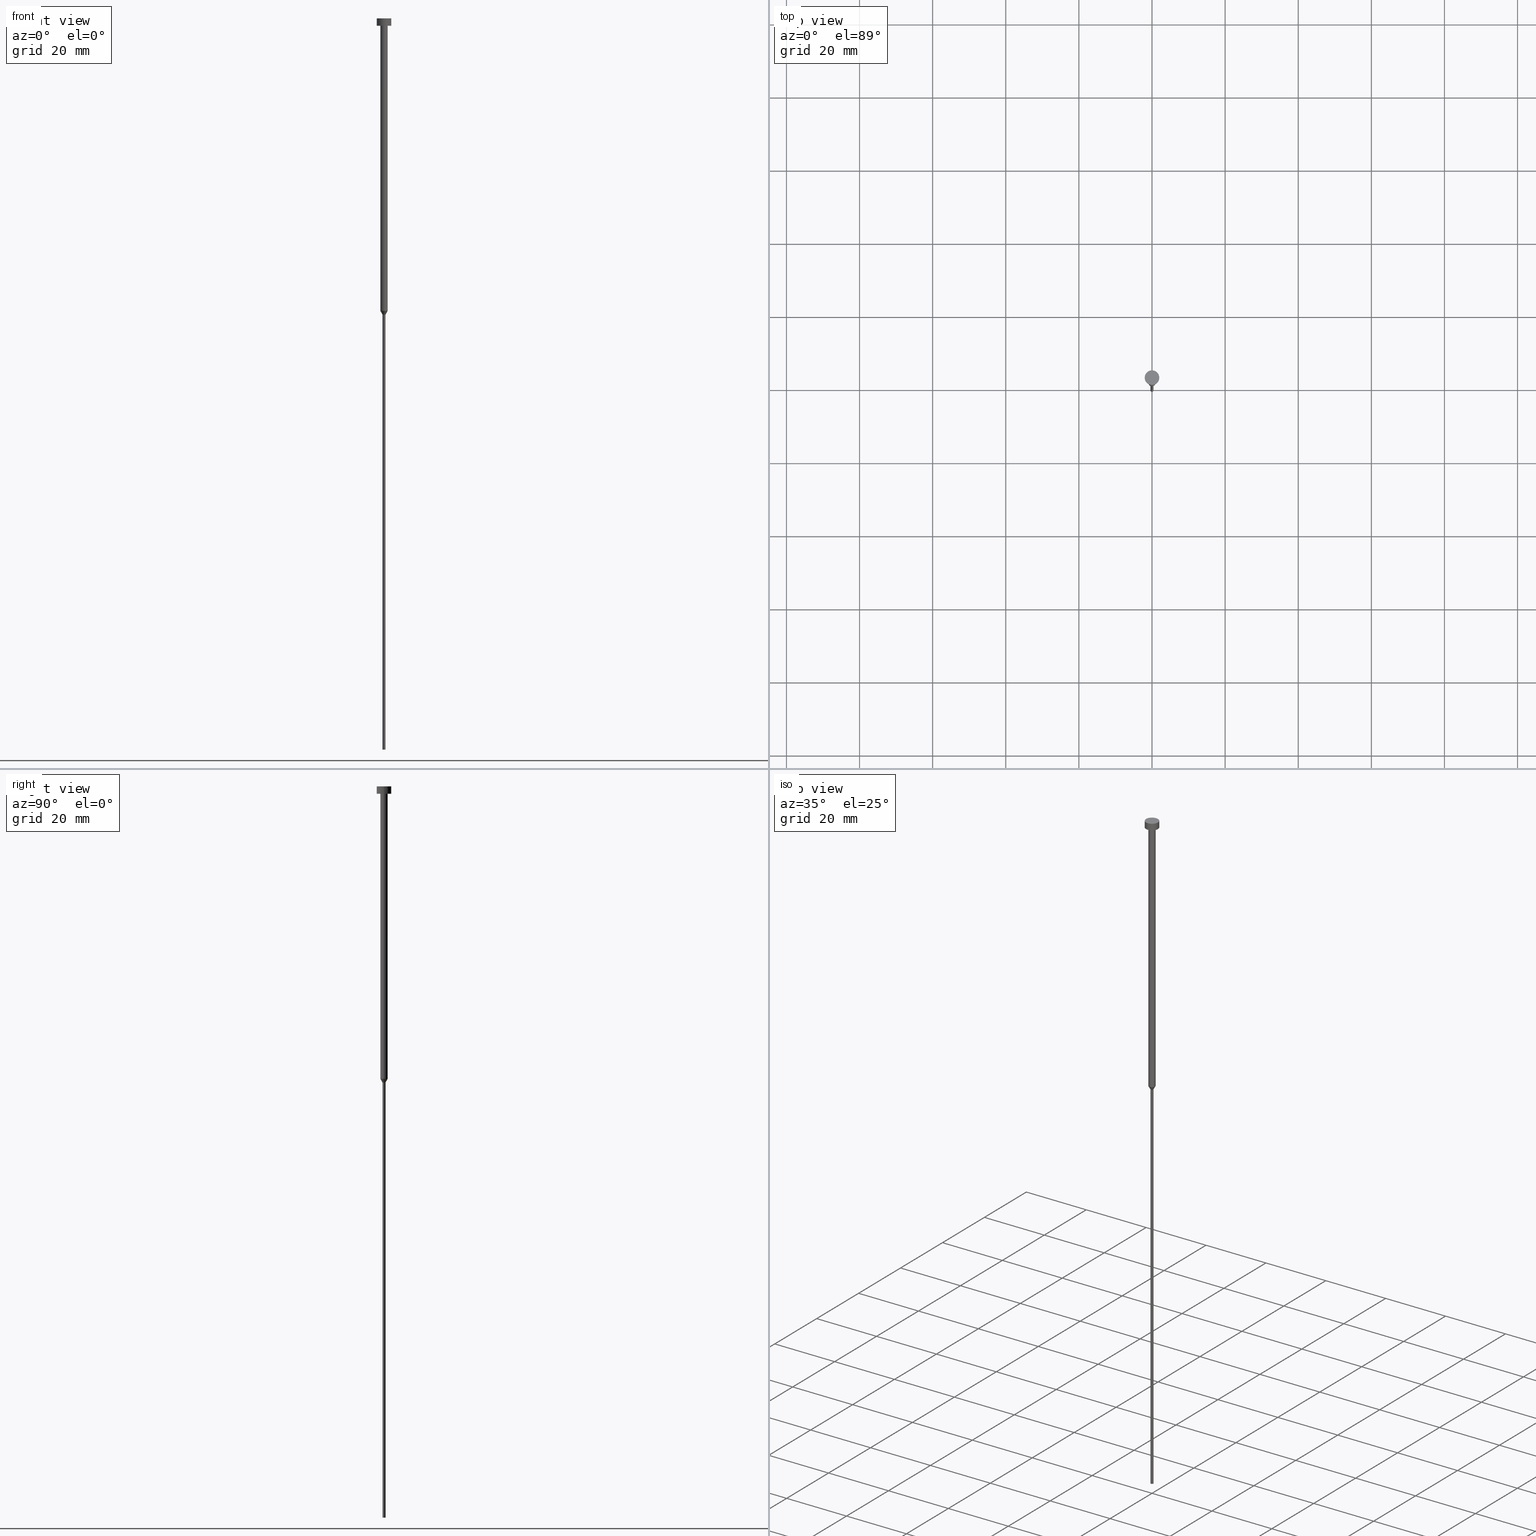
[diagram: canonical four-view strip — front | top / right | iso, engineering-drawing reading convention]
A machine part, canonical four-view strip (front | top / right | iso — engineering-drawing reading convention). The complete STEP part file that produces these views, byte-faithful:
ISO-10303-21;
HEADER;
FILE_DESCRIPTION (( 'STEP AP203' ),
    '1' );
FILE_NAME ('783f.STEP',
    '2023-02-13T11:50:25',
    ( '' ),
    ( '' ),
    'SwSTEP 2.0',
    'SolidWorks 2019',
    '' );
FILE_SCHEMA (( 'CONFIG_CONTROL_DESIGN' ));
ENDSEC;

DATA;
#1 = EDGE_LOOP ( 'NONE', ( #29, #124, #99, #126 ) ) ;
#2 = CARTESIAN_POINT ( 'NONE',  ( 0.000000000000000000, 0.000000000000000000, -2.000000000000000444 ) ) ;
#3 = DIRECTION ( 'NONE',  ( -0.000000000000000000, -0.000000000000000000, 1.000000000000000000 ) ) ;
#4 = CARTESIAN_POINT ( 'NONE',  ( 0.000000000000000000, 0.000000000000000000, 0.000000000000000000 ) ) ;
#5 = DIRECTION ( 'NONE',  ( 1.000000000000000000, 0.000000000000000000, 0.000000000000000000 ) ) ;
#6 = CARTESIAN_POINT ( 'NONE',  ( 0.000000000000000000, 0.000000000000000000, -1.224646799147352961E-16 ) ) ;
#7 = VECTOR ( 'NONE', #295, 1000.000000000000000 ) ;
#8 = DIRECTION ( 'NONE',  ( -0.000000000000000000, -0.000000000000000000, 1.000000000000000000 ) ) ;
#9 = UNCERTAINTY_MEASURE_WITH_UNIT (LENGTH_MEASURE( 1.000000000000000082E-05 ), #214, 'distance_accuracy_value', 'NONE');
#10 = CYLINDRICAL_SURFACE ( 'NONE', #280, 2.000000000000000000 ) ;
#11 = VERTEX_POINT ( 'NONE', #278 ) ;
#12 = FACE_OUTER_BOUND ( 'NONE', #58, .T. ) ;
#13 = AXIS2_PLACEMENT_3D ( 'NONE', #136, #285, #19 ) ;
#14 = DIRECTION ( 'NONE',  ( 1.000000000000000000, 0.000000000000000000, 0.000000000000000000 ) ) ;
#15 = PERSON_AND_ORGANIZATION_ROLE ( 'creator' ) ;
#16 = AXIS2_PLACEMENT_3D ( 'NONE', #303, #227, #335 ) ;
#17 = CIRCLE ( 'NONE', #270, 0.3999999999999999667 ) ;
#18 = CALENDAR_DATE ( 2023, 13, 2 ) ;
#19 = DIRECTION ( 'NONE',  ( 1.000000000000000000, 0.000000000000000000, 0.000000000000000000 ) ) ;
#20 = EDGE_CURVE ( 'NONE', #11, #188, #80, .T. ) ;
#21 = CARTESIAN_POINT ( 'NONE',  ( 1.000000000000003553, 0.000000000000000000, -2.000000000000000444 ) ) ;
#22 = DIRECTION ( 'NONE',  ( 1.000000000000000000, 0.000000000000000000, 0.000000000000000000 ) ) ;
#23 = CARTESIAN_POINT ( 'NONE',  ( -1.000000000000003331, 1.224646799147357151E-16, 0.000000000000000000 ) ) ;
#24 = EDGE_CURVE ( 'NONE', #87, #61, #169, .T. ) ;
#25 = CARTESIAN_POINT ( 'NONE',  ( 0.000000000000000000, 0.000000000000000000, -2.000000000000000444 ) ) ;
#26 = CLOSED_SHELL ( 'NONE', ( #274, #281, #34, #163, #88, #83, #292, #347, #78, #118, #41 ) ) ;
#27 = EDGE_LOOP ( 'NONE', ( #68, #133, #198, #276 ) ) ;
#28 = APPROVAL_PERSON_ORGANIZATION ( #352, #247, #115 ) ;
#29 = ORIENTED_EDGE ( 'NONE', *, *, #170, .F. ) ;
#30 = FACE_BOUND ( 'NONE', #266, .T. ) ;
#31 = DIRECTION ( 'NONE',  ( -0.000000000000000000, -0.000000000000000000, 1.000000000000000000 ) ) ;
#32 = DIRECTION ( 'NONE',  ( -1.000000000000000000, 0.000000000000000000, -0.000000000000000000 ) ) ;
#33 = ORIENTED_EDGE ( 'NONE', *, *, #298, .F. ) ;
#34 = ADVANCED_FACE ( 'NONE', ( #256 ), #55, .T. ) ;
#35 = CONICAL_SURFACE ( 'NONE', #139, 1.000000000000003109, 0.5235987755983013692 ) ;
#36 = ORIENTED_EDGE ( 'NONE', *, *, #107, .T. ) ;
#37 = CYLINDRICAL_SURFACE ( 'NONE', #275, 0.3999999999999999667 ) ;
#38 = CARTESIAN_POINT ( 'NONE',  ( 0.000000000000000000, 0.000000000000000000, -80.00000000000000000 ) ) ;
#39 = MANIFOLD_SOLID_BREP ( 'Rotovat1', #26 ) ;
#40 = EDGE_LOOP ( 'NONE', ( #333, #290, #113, #305 ) ) ;
#41 = ADVANCED_FACE ( 'NONE', ( #100 ), #253, .T. ) ;
#42 = CIRCLE ( 'NONE', #120, 1.000000000000003553 ) ;
#43 = PRODUCT ( '783f', '783f', '', ( #314 ) ) ;
#44 = CARTESIAN_POINT ( 'NONE',  ( -1.000000000000003109, 1.224646799147356905E-16, -80.00000000000000000 ) ) ;
#45 = CARTESIAN_POINT ( 'NONE',  ( -1.000000000000003109, 1.224646799147356905E-16, -80.00000000000000000 ) ) ;
#46 = DIRECTION ( 'NONE',  ( 1.000000000000000000, 0.000000000000000000, 0.000000000000000000 ) ) ;
#47 = APPLICATION_CONTEXT ( 'configuration controlled 3d designs of mechanical parts and assemblies' ) ;
#48 = CC_DESIGN_PERSON_AND_ORGANIZATION_ASSIGNMENT ( #132, #53, ( #149 ) ) ;
#49 = COORDINATED_UNIVERSAL_TIME_OFFSET ( 1, 0, .AHEAD. ) ;
#50 = CIRCLE ( 'NONE', #315, 2.000000000000000000 ) ;
#51 = DATE_AND_TIME ( #259, #351 ) ;
#52 = EDGE_CURVE ( 'NONE', #242, #307, #288, .T. ) ;
#53 = PERSON_AND_ORGANIZATION_ROLE ( 'design_supplier' ) ;
#54 = COORDINATED_UNIVERSAL_TIME_OFFSET ( 1, 0, .AHEAD. ) ;
#55 = CONICAL_SURFACE ( 'NONE', #16, 1.000000000000003109, 0.5235987755983013692 ) ;
#56 = ORGANIZATION ( 'NEUR�EN�', 'NEUR�EN�', '' ) ;
#57 = DIRECTION ( 'NONE',  ( -0.000000000000000000, -0.000000000000000000, 1.000000000000000000 ) ) ;
#58 = EDGE_LOOP ( 'NONE', ( #212, #210 ) ) ;
#59 = EDGE_LOOP ( 'NONE', ( #85, #181, #237, #297 ) ) ;
#60 = DIRECTION ( 'NONE',  ( 1.000000000000000000, 0.000000000000000000, 0.000000000000000000 ) ) ;
#61 = VERTEX_POINT ( 'NONE', #66 ) ;
#62 = APPROVAL_DATE_TIME ( #249, #247 ) ;
#63 = AXIS2_PLACEMENT_3D ( 'NONE', #125, #339, #98 ) ;
#64 = VECTOR ( 'NONE', #57, 1000.000000000000000 ) ;
#65 = EDGE_CURVE ( 'NONE', #262, #110, #102, .T. ) ;
#66 = CARTESIAN_POINT ( 'NONE',  ( 1.000000000000003109, 0.000000000000000000, -80.00000000000000000 ) ) ;
#67 = PRODUCT_RELATED_PRODUCT_CATEGORY ( 'detail', '', ( #43 ) ) ;
#68 = ORIENTED_EDGE ( 'NONE', *, *, #298, .T. ) ;
#69 = AXIS2_PLACEMENT_3D ( 'NONE', #341, #332, #94 ) ;
#70 = DIRECTION ( 'NONE',  ( -0.000000000000000000, -0.000000000000000000, 1.000000000000000000 ) ) ;
#71 = DIRECTION ( 'NONE',  ( -0.000000000000000000, -0.000000000000000000, 1.000000000000000000 ) ) ;
#72 = APPROVAL ( #202, 'NEUR�EN�' ) ;
#73 = VERTEX_POINT ( 'NONE', #272 ) ;
#74 = ORIENTED_EDGE ( 'NONE', *, *, #95, .T. ) ;
#75 = DIRECTION ( 'NONE',  ( 1.000000000000000000, 0.000000000000000000, 0.000000000000000000 ) ) ;
#76 = AXIS2_PLACEMENT_3D ( 'NONE', #269, #141, #221 ) ;
#77 = PRODUCT_DEFINITION_SHAPE ( 'NONE', 'NONE',  #309 ) ;
#78 = ADVANCED_FACE ( 'NONE', ( #30, #142 ), #219, .T. ) ;
#79 = COORDINATED_UNIVERSAL_TIME_OFFSET ( 1, 0, .AHEAD. ) ;
#80 = CIRCLE ( 'NONE', #268, 0.3999999999999999667 ) ;
#81 = AXIS2_PLACEMENT_3D ( 'NONE', #106, #109, #135 ) ;
#82 = CARTESIAN_POINT ( 'NONE',  ( 0.000000000000000000, 0.000000000000000000, -2.000000000000000444 ) ) ;
#83 = ADVANCED_FACE ( 'NONE', ( #92 ), #37, .T. ) ;
#84 = PERSON_AND_ORGANIZATION ( #257, #56 ) ;
#85 = ORIENTED_EDGE ( 'NONE', *, *, #162, .T. ) ;
#86 = AXIS2_PLACEMENT_3D ( 'NONE', #330, #165, #32 ) ;
#87 = VERTEX_POINT ( 'NONE', #44 ) ;
#88 = ADVANCED_FACE ( 'NONE', ( #12 ), #252, .T. ) ;
#89 = CARTESIAN_POINT ( 'NONE',  ( 0.000000000000000000, 0.000000000000000000, -2.449293598294705921E-16 ) ) ;
#90 = AXIS2_PLACEMENT_3D ( 'NONE', #244, #328, #60 ) ;
#91 = EDGE_CURVE ( 'NONE', #61, #262, #196, .T. ) ;
#92 = FACE_OUTER_BOUND ( 'NONE', #1, .T. ) ;
#93 = VERTEX_POINT ( 'NONE', #231 ) ;
#94 = DIRECTION ( 'NONE',  ( 1.000000000000000000, 0.000000000000000000, 0.000000000000000000 ) ) ;
#95 = EDGE_CURVE ( 'NONE', #307, #93, #194, .T. ) ;
#96 = EDGE_CURVE ( 'NONE', #61, #87, #346, .T. ) ;
#97 = DIRECTION ( 'NONE',  ( 1.000000000000000000, 0.000000000000000000, 0.000000000000000000 ) ) ;
#98 = DIRECTION ( 'NONE',  ( -1.000000000000000000, 0.000000000000000000, -0.000000000000000000 ) ) ;
#99 = ORIENTED_EDGE ( 'NONE', *, *, #101, .T. ) ;
#100 = FACE_OUTER_BOUND ( 'NONE', #174, .T. ) ;
#101 = EDGE_CURVE ( 'NONE', #168, #188, #353, .T. ) ;
#102 = CIRCLE ( 'NONE', #152, 1.000000000000003553 ) ;
#103 = CC_DESIGN_SECURITY_CLASSIFICATION ( #177, ( #149 ) ) ;
#104 = CARTESIAN_POINT ( 'NONE',  ( 2.000000000000000000, 0.000000000000000000, -2.000000000000000444 ) ) ;
#105 = DATE_TIME_ROLE ( 'creation_date' ) ;
#106 = CARTESIAN_POINT ( 'NONE',  ( 0.000000000000000000, 0.000000000000000000, 0.000000000000000000 ) ) ;
#107 = EDGE_CURVE ( 'NONE', #188, #61, #267, .T. ) ;
#108 = CC_DESIGN_APPROVAL ( #342, ( #309 ) ) ;
#109 = DIRECTION ( 'NONE',  ( -0.000000000000000000, -0.000000000000000000, 1.000000000000000000 ) ) ;
#110 = VERTEX_POINT ( 'NONE', #258 ) ;
#111 = EDGE_CURVE ( 'NONE', #73, #242, #127, .T. ) ;
#112 = APPROVAL_DATE_TIME ( #286, #342 ) ;
#113 = ORIENTED_EDGE ( 'NONE', *, *, #52, .T. ) ;
#114 = ORIENTED_EDGE ( 'NONE', *, *, #24, .T. ) ;
#115 = APPROVAL_ROLE ( '' ) ;
#116 = CARTESIAN_POINT ( 'NONE',  ( 0.3999999999999999667, 0.000000000000000000, 0.000000000000000000 ) ) ;
#117 = CC_DESIGN_DATE_AND_TIME_ASSIGNMENT ( #156, #187, ( #177 ) ) ;
#118 = ADVANCED_FACE ( 'NONE', ( #185 ), #293, .T. ) ;
#119 = VECTOR ( 'NONE', #70, 1000.000000000000000 ) ;
#120 = AXIS2_PLACEMENT_3D ( 'NONE', #25, #317, #97 ) ;
#121 = EDGE_CURVE ( 'NONE', #87, #110, #207, .T. ) ;
#122 = VECTOR ( 'NONE', #153, 1000.000000000000227 ) ;
#123 = FACE_OUTER_BOUND ( 'NONE', #350, .T. ) ;
#124 = ORIENTED_EDGE ( 'NONE', *, *, #250, .T. ) ;
#125 = CARTESIAN_POINT ( 'NONE',  ( 0.000000000000000000, 0.000000000000000000, -200.0000000000000000 ) ) ;
#126 = ORIENTED_EDGE ( 'NONE', *, *, #20, .F. ) ;
#127 = CIRCLE ( 'NONE', #161, 2.000000000000000000 ) ;
#128 = FACE_OUTER_BOUND ( 'NONE', #27, .T. ) ;
#129 = PERSON_AND_ORGANIZATION_ROLE ( 'creator' ) ;
#130 = APPROVAL_STATUS ( 'not_yet_approved' ) ;
#131 = CIRCLE ( 'NONE', #164, 0.4000000000000000222 ) ;
#132 = PERSON_AND_ORGANIZATION ( #257, #56 ) ;
#133 = ORIENTED_EDGE ( 'NONE', *, *, #355, .T. ) ;
#134 = CARTESIAN_POINT ( 'NONE',  ( 0.4000000000000000222, 0.000000000000000000, -200.0000000000000000 ) ) ;
#135 = DIRECTION ( 'NONE',  ( 1.000000000000000000, 0.000000000000000000, 0.000000000000000000 ) ) ;
#136 = CARTESIAN_POINT ( 'NONE',  ( 0.000000000000000000, 0.000000000000000000, 0.000000000000000000 ) ) ;
#137 = EDGE_LOOP ( 'NONE', ( #217, #166, #300, #320 ) ) ;
#138 = ORIENTED_EDGE ( 'NONE', *, *, #230, .F. ) ;
#139 = AXIS2_PLACEMENT_3D ( 'NONE', #304, #284, #345 ) ;
#140 = ORIENTED_EDGE ( 'NONE', *, *, #91, .T. ) ;
#141 = DIRECTION ( 'NONE',  ( -0.000000000000000000, -0.000000000000000000, 1.000000000000000000 ) ) ;
#142 = FACE_OUTER_BOUND ( 'NONE', #200, .T. ) ;
#143 = DIRECTION ( 'NONE',  ( 1.000000000000000000, 0.000000000000000000, 0.000000000000000000 ) ) ;
#144 = FACE_OUTER_BOUND ( 'NONE', #59, .T. ) ;
#145 = CALENDAR_DATE ( 2023, 13, 2 ) ;
#146 = VECTOR ( 'NONE', #343, 1000.000000000000000 ) ;
#147 = DIRECTION ( 'NONE',  ( -0.000000000000000000, -0.000000000000000000, 1.000000000000000000 ) ) ;
#148 = DIRECTION ( 'NONE',  ( -0.000000000000000000, -0.000000000000000000, 1.000000000000000000 ) ) ;
#149 = PRODUCT_DEFINITION_FORMATION_WITH_SPECIFIED_SOURCE ( 'LIBOVOLN�', '', #43, .NOT_KNOWN. ) ;
#150 = DIRECTION ( 'NONE',  ( -0.5000000000000021094, 6.123233995736791920E-17, 0.8660254037844373753 ) ) ;
#151 = DIRECTION ( 'NONE',  ( -0.000000000000000000, -0.000000000000000000, 1.000000000000000000 ) ) ;
#152 = AXIS2_PLACEMENT_3D ( 'NONE', #2, #193, #273 ) ;
#153 = DIRECTION ( 'NONE',  ( 0.5000000000000021094, 0.000000000000000000, 0.8660254037844373753 ) ) ;
#154 = PERSON_AND_ORGANIZATION ( #257, #56 ) ;
#155 = DIRECTION ( 'NONE',  ( 1.000000000000000000, 0.000000000000000000, 0.000000000000000000 ) ) ;
#156 = DATE_AND_TIME ( #344, #264 ) ;
#157 = PERSON_AND_ORGANIZATION ( #257, #56 ) ;
#158 = CC_DESIGN_PERSON_AND_ORGANIZATION_ASSIGNMENT ( #260, #235, ( #177 ) ) ;
#159 = AXIS2_PLACEMENT_3D ( 'NONE', #337, #71, #226 ) ;
#160 = DIRECTION ( 'NONE',  ( -0.000000000000000000, -0.000000000000000000, 1.000000000000000000 ) ) ;
#161 = AXIS2_PLACEMENT_3D ( 'NONE', #204, #277, #294 ) ;
#162 = EDGE_CURVE ( 'NONE', #168, #224, #206, .T. ) ;
#163 = ADVANCED_FACE ( 'NONE', ( #144 ), #245, .T. ) ;
#164 = AXIS2_PLACEMENT_3D ( 'NONE', #310, #151, #313 ) ;
#165 = DIRECTION ( 'NONE',  ( 0.000000000000000000, 0.000000000000000000, -1.000000000000000000 ) ) ;
#166 = ORIENTED_EDGE ( 'NONE', *, *, #230, .T. ) ;
#167 = CARTESIAN_POINT ( 'NONE',  ( 1.000000000000003331, 0.000000000000000000, 0.000000000000000000 ) ) ;
#168 = VERTEX_POINT ( 'NONE', #134 ) ;
#169 = CIRCLE ( 'NONE', #279, 1.000000000000003109 ) ;
#170 = EDGE_CURVE ( 'NONE', #224, #11, #239, .T. ) ;
#171 = AXIS2_PLACEMENT_3D ( 'NONE', #205, #234, #14 ) ;
#172 = CARTESIAN_POINT ( 'NONE',  ( -0.4000000000000000777, 4.898587196589413692E-17, -200.0000000000000000 ) ) ;
#173 = CYLINDRICAL_SURFACE ( 'NONE', #69, 1.000000000000003331 ) ;
#174 = EDGE_LOOP ( 'NONE', ( #74, #321 ) ) ;
#175 =( NAMED_UNIT ( * ) SI_UNIT ( $, .STERADIAN. ) SOLID_ANGLE_UNIT ( ) );
#176 = APPROVAL_DATE_TIME ( #348, #72 ) ;
#177 = SECURITY_CLASSIFICATION ( '', '', #238 ) ;
#178 = COORDINATED_UNIVERSAL_TIME_OFFSET ( 1, 0, .AHEAD. ) ;
#179 = CARTESIAN_POINT ( 'NONE',  ( 2.000000000000000000, 0.000000000000000000, 0.000000000000000000 ) ) ;
#180 = CALENDAR_DATE ( 2023, 13, 2 ) ;
#181 = ORIENTED_EDGE ( 'NONE', *, *, #170, .T. ) ;
#182 = PERSON_AND_ORGANIZATION ( #257, #56 ) ;
#183 = CC_DESIGN_PERSON_AND_ORGANIZATION_ASSIGNMENT ( #84, #15, ( #309 ) ) ;
#184 = ORIENTED_EDGE ( 'NONE', *, *, #265, .T. ) ;
#185 = FACE_OUTER_BOUND ( 'NONE', #40, .T. ) ;
#186 = ORIENTED_EDGE ( 'NONE', *, *, #111, .F. ) ;
#187 = DATE_TIME_ROLE ( 'classification_date' ) ;
#188 = VERTEX_POINT ( 'NONE', #208 ) ;
#189 = APPROVAL_STATUS ( 'not_yet_approved' ) ;
#190 = CARTESIAN_POINT ( 'NONE',  ( 2.000000000000000000, 0.000000000000000000, -2.449293598294705921E-16 ) ) ;
#191 = DIRECTION ( 'NONE',  ( 1.000000000000000000, 0.000000000000000000, 0.000000000000000000 ) ) ;
#192 = ORIENTED_EDGE ( 'NONE', *, *, #24, .F. ) ;
#193 = DIRECTION ( 'NONE',  ( -0.000000000000000000, -0.000000000000000000, 1.000000000000000000 ) ) ;
#194 = CIRCLE ( 'NONE', #159, 2.000000000000000000 ) ;
#195 = ORIENTED_EDGE ( 'NONE', *, *, #121, .F. ) ;
#196 = LINE ( 'NONE', #167, #216 ) ;
#197 = CC_DESIGN_PERSON_AND_ORGANIZATION_ASSIGNMENT ( #154, #129, ( #149 ) ) ;
#198 = ORIENTED_EDGE ( 'NONE', *, *, #95, .F. ) ;
#199 = DIRECTION ( 'NONE',  ( 0.000000000000000000, -0.000000000000000000, 1.000000000000000000 ) ) ;
#200 = EDGE_LOOP ( 'NONE', ( #33, #186 ) ) ;
#201 = CC_DESIGN_APPROVAL ( #247, ( #177 ) ) ;
#202 = APPROVAL_STATUS ( 'not_yet_approved' ) ;
#203 = LINE ( 'NONE', #45, #340 ) ;
#204 = CARTESIAN_POINT ( 'NONE',  ( 0.000000000000000000, 0.000000000000000000, -2.000000000000000444 ) ) ;
#205 = CARTESIAN_POINT ( 'NONE',  ( 0.000000000000000000, 0.000000000000000000, 0.000000000000000000 ) ) ;
#206 = CIRCLE ( 'NONE', #76, 0.4000000000000000222 ) ;
#207 = LINE ( 'NONE', #23, #146 ) ;
#208 = CARTESIAN_POINT ( 'NONE',  ( 0.3999999999999999667, 0.000000000000000000, -81.03923048454132072 ) ) ;
#209 =( NAMED_UNIT ( * ) PLANE_ANGLE_UNIT ( ) SI_UNIT ( $, .RADIAN. ) );
#210 = ORIENTED_EDGE ( 'NONE', *, *, #250, .F. ) ;
#211 = APPLICATION_PROTOCOL_DEFINITION ( 'international standard', 'config_control_design', 1994, #47 ) ;
#212 = ORIENTED_EDGE ( 'NONE', *, *, #162, .F. ) ;
#213 = CARTESIAN_POINT ( 'NONE',  ( -0.3999999999999999667, 4.898587196589412459E-17, 0.000000000000000000 ) ) ;
#214 =( LENGTH_UNIT ( ) NAMED_UNIT ( * ) SI_UNIT ( .MILLI., .METRE. ) );
#215 = ORIENTED_EDGE ( 'NONE', *, *, #65, .F. ) ;
#216 = VECTOR ( 'NONE', #8, 1000.000000000000000 ) ;
#217 = ORIENTED_EDGE ( 'NONE', *, *, #329, .T. ) ;
#218 = APPLICATION_CONTEXT ( 'configuration controlled 3d designs of mechanical parts and assemblies' ) ;
#219 = PLANE ( 'NONE',  #86 ) ;
#220 = CARTESIAN_POINT ( 'NONE',  ( 1.000000000000003109, 0.000000000000000000, -80.00000000000000000 ) ) ;
#221 = DIRECTION ( 'NONE',  ( 1.000000000000000000, 0.000000000000000000, 0.000000000000000000 ) ) ;
#222 = DIRECTION ( 'NONE',  ( -0.000000000000000000, -0.000000000000000000, 1.000000000000000000 ) ) ;
#223 = EDGE_LOOP ( 'NONE', ( #138, #240, #36, #192 ) ) ;
#224 = VERTEX_POINT ( 'NONE', #172 ) ;
#225 = ORIENTED_EDGE ( 'NONE', *, *, #96, .T. ) ;
#226 = DIRECTION ( 'NONE',  ( 1.000000000000000000, 0.000000000000000000, 0.000000000000000000 ) ) ;
#227 = DIRECTION ( 'NONE',  ( -0.000000000000000000, -0.000000000000000000, 1.000000000000000000 ) ) ;
#228 = LOCAL_TIME ( 12, 50, 25.00000000000000000, #296 ) ;
#229 = CC_DESIGN_PERSON_AND_ORGANIZATION_ASSIGNMENT ( #289, #349, ( #43 ) ) ;
#230 = EDGE_CURVE ( 'NONE', #11, #87, #203, .T. ) ;
#231 = CARTESIAN_POINT ( 'NONE',  ( -2.000000000000000000, 2.449293598294706414E-16, -2.449293598294705921E-16 ) ) ;
#232 = DESIGN_CONTEXT ( 'detailed design', #47, 'design' ) ;
#233 = APPROVAL_PERSON_ORGANIZATION ( #157, #342, #236 ) ;
#234 = DIRECTION ( 'NONE',  ( 0.000000000000000000, 0.000000000000000000, 1.000000000000000000 ) ) ;
#235 = PERSON_AND_ORGANIZATION_ROLE ( 'classification_officer' ) ;
#236 = APPROVAL_ROLE ( '' ) ;
#237 = ORIENTED_EDGE ( 'NONE', *, *, #329, .F. ) ;
#238 = SECURITY_CLASSIFICATION_LEVEL ( 'unclassified' ) ;
#239 = LINE ( 'NONE', #213, #255 ) ;
#240 = ORIENTED_EDGE ( 'NONE', *, *, #20, .T. ) ;
#241 = LINE ( 'NONE', #316, #64 ) ;
#242 = VERTEX_POINT ( 'NONE', #104 ) ;
#243 = APPROVAL_PERSON_ORGANIZATION ( #182, #72, #312 ) ;
#244 = CARTESIAN_POINT ( 'NONE',  ( 0.000000000000000000, 0.000000000000000000, 0.000000000000000000 ) ) ;
#245 = CYLINDRICAL_SURFACE ( 'NONE', #13, 0.3999999999999999667 ) ;
#246 = ADVANCED_BREP_SHAPE_REPRESENTATION ( '783f', ( #39, #171 ), #302 ) ;
#247 = APPROVAL ( #189, 'NEUR�EN�' ) ;
#248 = CC_DESIGN_APPROVAL ( #72, ( #149 ) ) ;
#249 = DATE_AND_TIME ( #145, #228 ) ;
#250 = EDGE_CURVE ( 'NONE', #224, #168, #131, .T. ) ;
#251 = CARTESIAN_POINT ( 'NONE',  ( 0.000000000000000000, 0.000000000000000000, -80.00000000000000000 ) ) ;
#252 = PLANE ( 'NONE',  #63 ) ;
#253 = PLANE ( 'NONE',  #331 ) ;
#254 = LOCAL_TIME ( 12, 50, 25.00000000000000000, #178 ) ;
#255 = VECTOR ( 'NONE', #322, 1000.000000000000000 ) ;
#256 = FACE_OUTER_BOUND ( 'NONE', #137, .T. ) ;
#257 = PERSON ( 'NEUR�EN�', 'NEUR�EN�', 'NEUR�EN�', ('NEUR�EN�'), ('NEUR�EN�'), ('NEUR�EN�') ) ;
#258 = CARTESIAN_POINT ( 'NONE',  ( -1.000000000000003553, 1.224646799147357398E-16, -2.000000000000000444 ) ) ;
#259 = CALENDAR_DATE ( 2023, 13, 2 ) ;
#260 = PERSON_AND_ORGANIZATION ( #257, #56 ) ;
#261 = CC_DESIGN_DATE_AND_TIME_ASSIGNMENT ( #51, #105, ( #309 ) ) ;
#262 = VERTEX_POINT ( 'NONE', #21 ) ;
#263 = APPLICATION_PROTOCOL_DEFINITION ( 'international standard', 'config_control_design', 1994, #218 ) ;
#264 = LOCAL_TIME ( 12, 50, 25.00000000000000000, #54 ) ;
#265 = EDGE_CURVE ( 'NONE', #110, #262, #42, .T. ) ;
#266 = EDGE_LOOP ( 'NONE', ( #325, #184 ) ) ;
#267 = LINE ( 'NONE', #220, #122 ) ;
#268 = AXIS2_PLACEMENT_3D ( 'NONE', #338, #148, #75 ) ;
#269 = CARTESIAN_POINT ( 'NONE',  ( 0.000000000000000000, 0.000000000000000000, -200.0000000000000000 ) ) ;
#270 = AXIS2_PLACEMENT_3D ( 'NONE', #326, #222, #46 ) ;
#271 = EDGE_CURVE ( 'NONE', #93, #307, #308, .T. ) ;
#272 = CARTESIAN_POINT ( 'NONE',  ( -2.000000000000000000, 2.449293598294706414E-16, -2.000000000000000444 ) ) ;
#273 = DIRECTION ( 'NONE',  ( 1.000000000000000000, 0.000000000000000000, 0.000000000000000000 ) ) ;
#274 = ADVANCED_FACE ( 'NONE', ( #128 ), #10, .T. ) ;
#275 = AXIS2_PLACEMENT_3D ( 'NONE', #4, #306, #311 ) ;
#276 = ORIENTED_EDGE ( 'NONE', *, *, #52, .F. ) ;
#277 = DIRECTION ( 'NONE',  ( -0.000000000000000000, -0.000000000000000000, 1.000000000000000000 ) ) ;
#278 = CARTESIAN_POINT ( 'NONE',  ( -0.3999999999999999667, 4.898587196589412459E-17, -81.03923048454132072 ) ) ;
#279 = AXIS2_PLACEMENT_3D ( 'NONE', #38, #3, #5 ) ;
#280 = AXIS2_PLACEMENT_3D ( 'NONE', #299, #147, #191 ) ;
#281 = ADVANCED_FACE ( 'NONE', ( #334 ), #173, .T. ) ;
#282 = DIRECTION ( 'NONE',  ( 1.000000000000000000, 0.000000000000000000, 0.000000000000000000 ) ) ;
#283 = AXIS2_PLACEMENT_3D ( 'NONE', #89, #31, #143 ) ;
#284 = DIRECTION ( 'NONE',  ( -0.000000000000000000, -0.000000000000000000, 1.000000000000000000 ) ) ;
#285 = DIRECTION ( 'NONE',  ( -0.000000000000000000, -0.000000000000000000, 1.000000000000000000 ) ) ;
#286 = DATE_AND_TIME ( #18, #254 ) ;
#287 = DIRECTION ( 'NONE',  ( -0.000000000000000000, -0.000000000000000000, 1.000000000000000000 ) ) ;
#288 = LINE ( 'NONE', #179, #119 ) ;
#289 = PERSON_AND_ORGANIZATION ( #257, #56 ) ;
#290 = ORIENTED_EDGE ( 'NONE', *, *, #111, .T. ) ;
#291 = AXIS2_PLACEMENT_3D ( 'NONE', #251, #160, #22 ) ;
#292 = ADVANCED_FACE ( 'NONE', ( #301 ), #35, .T. ) ;
#293 = CYLINDRICAL_SURFACE ( 'NONE', #90, 2.000000000000000000 ) ;
#294 = DIRECTION ( 'NONE',  ( 1.000000000000000000, 0.000000000000000000, 0.000000000000000000 ) ) ;
#295 = DIRECTION ( 'NONE',  ( -0.000000000000000000, -0.000000000000000000, 1.000000000000000000 ) ) ;
#296 = COORDINATED_UNIVERSAL_TIME_OFFSET ( 1, 0, .AHEAD. ) ;
#297 = ORIENTED_EDGE ( 'NONE', *, *, #101, .F. ) ;
#298 = EDGE_CURVE ( 'NONE', #242, #73, #50, .T. ) ;
#299 = CARTESIAN_POINT ( 'NONE',  ( 0.000000000000000000, 0.000000000000000000, 0.000000000000000000 ) ) ;
#300 = ORIENTED_EDGE ( 'NONE', *, *, #96, .F. ) ;
#301 = FACE_OUTER_BOUND ( 'NONE', #223, .T. ) ;
#302 =( GEOMETRIC_REPRESENTATION_CONTEXT ( 3 ) GLOBAL_UNCERTAINTY_ASSIGNED_CONTEXT ( ( #9 ) ) GLOBAL_UNIT_ASSIGNED_CONTEXT ( ( #214, #209, #175 ) ) REPRESENTATION_CONTEXT ( 'NONE', 'WORKASPACE' ) );
#303 = CARTESIAN_POINT ( 'NONE',  ( 0.000000000000000000, 0.000000000000000000, -80.00000000000000000 ) ) ;
#304 = CARTESIAN_POINT ( 'NONE',  ( 0.000000000000000000, 0.000000000000000000, -80.00000000000000000 ) ) ;
#305 = ORIENTED_EDGE ( 'NONE', *, *, #271, .F. ) ;
#306 = DIRECTION ( 'NONE',  ( -0.000000000000000000, -0.000000000000000000, 1.000000000000000000 ) ) ;
#307 = VERTEX_POINT ( 'NONE', #190 ) ;
#308 = CIRCLE ( 'NONE', #283, 2.000000000000000000 ) ;
#309 = PRODUCT_DEFINITION ( 'NEZN�M�', '', #149, #232 ) ;
#310 = CARTESIAN_POINT ( 'NONE',  ( 0.000000000000000000, 0.000000000000000000, -200.0000000000000000 ) ) ;
#311 = DIRECTION ( 'NONE',  ( 1.000000000000000000, 0.000000000000000000, 0.000000000000000000 ) ) ;
#312 = APPROVAL_ROLE ( '' ) ;
#313 = DIRECTION ( 'NONE',  ( 1.000000000000000000, 0.000000000000000000, 0.000000000000000000 ) ) ;
#314 = MECHANICAL_CONTEXT ( 'NONE', #218, 'mechanical' ) ;
#315 = AXIS2_PLACEMENT_3D ( 'NONE', #82, #287, #155 ) ;
#316 = CARTESIAN_POINT ( 'NONE',  ( -2.000000000000000000, 2.449293598294706414E-16, 0.000000000000000000 ) ) ;
#317 = DIRECTION ( 'NONE',  ( -0.000000000000000000, -0.000000000000000000, 1.000000000000000000 ) ) ;
#318 = ORIENTED_EDGE ( 'NONE', *, *, #91, .F. ) ;
#319 = CYLINDRICAL_SURFACE ( 'NONE', #81, 1.000000000000003331 ) ;
#320 = ORIENTED_EDGE ( 'NONE', *, *, #107, .F. ) ;
#321 = ORIENTED_EDGE ( 'NONE', *, *, #271, .T. ) ;
#322 = DIRECTION ( 'NONE',  ( -0.000000000000000000, -0.000000000000000000, 1.000000000000000000 ) ) ;
#323 = EDGE_LOOP ( 'NONE', ( #225, #354, #215, #318 ) ) ;
#324 = SHAPE_DEFINITION_REPRESENTATION ( #77, #246 ) ;
#325 = ORIENTED_EDGE ( 'NONE', *, *, #65, .T. ) ;
#326 = CARTESIAN_POINT ( 'NONE',  ( 0.000000000000000000, 0.000000000000000000, -81.03923048454132072 ) ) ;
#327 = ORIENTED_EDGE ( 'NONE', *, *, #265, .F. ) ;
#328 = DIRECTION ( 'NONE',  ( -0.000000000000000000, -0.000000000000000000, 1.000000000000000000 ) ) ;
#329 = EDGE_CURVE ( 'NONE', #188, #11, #17, .T. ) ;
#330 = CARTESIAN_POINT ( 'NONE',  ( 0.000000000000000000, -2.000000000000000000, -2.000000000000000444 ) ) ;
#331 = AXIS2_PLACEMENT_3D ( 'NONE', #6, #199, #282 ) ;
#332 = DIRECTION ( 'NONE',  ( -0.000000000000000000, -0.000000000000000000, 1.000000000000000000 ) ) ;
#333 = ORIENTED_EDGE ( 'NONE', *, *, #355, .F. ) ;
#334 = FACE_OUTER_BOUND ( 'NONE', #323, .T. ) ;
#335 = DIRECTION ( 'NONE',  ( 1.000000000000000000, 0.000000000000000000, 0.000000000000000000 ) ) ;
#336 = LOCAL_TIME ( 12, 50, 25.00000000000000000, #79 ) ;
#337 = CARTESIAN_POINT ( 'NONE',  ( 0.000000000000000000, 0.000000000000000000, -2.449293598294705921E-16 ) ) ;
#338 = CARTESIAN_POINT ( 'NONE',  ( 0.000000000000000000, 0.000000000000000000, -81.03923048454132072 ) ) ;
#339 = DIRECTION ( 'NONE',  ( 0.000000000000000000, 0.000000000000000000, -1.000000000000000000 ) ) ;
#340 = VECTOR ( 'NONE', #150, 1000.000000000000227 ) ;
#341 = CARTESIAN_POINT ( 'NONE',  ( 0.000000000000000000, 0.000000000000000000, 0.000000000000000000 ) ) ;
#342 = APPROVAL ( #130, 'NEUR�EN�' ) ;
#343 = DIRECTION ( 'NONE',  ( -0.000000000000000000, -0.000000000000000000, 1.000000000000000000 ) ) ;
#344 = CALENDAR_DATE ( 2023, 13, 2 ) ;
#345 = DIRECTION ( 'NONE',  ( 1.000000000000000000, 0.000000000000000000, 0.000000000000000000 ) ) ;
#346 = CIRCLE ( 'NONE', #291, 1.000000000000003109 ) ;
#347 = ADVANCED_FACE ( 'NONE', ( #123 ), #319, .T. ) ;
#348 = DATE_AND_TIME ( #180, #336 ) ;
#349 = PERSON_AND_ORGANIZATION_ROLE ( 'design_owner' ) ;
#350 = EDGE_LOOP ( 'NONE', ( #195, #114, #140, #327 ) ) ;
#351 = LOCAL_TIME ( 12, 50, 25.00000000000000000, #49 ) ;
#352 = PERSON_AND_ORGANIZATION ( #257, #56 ) ;
#353 = LINE ( 'NONE', #116, #7 ) ;
#354 = ORIENTED_EDGE ( 'NONE', *, *, #121, .T. ) ;
#355 = EDGE_CURVE ( 'NONE', #73, #93, #241, .T. ) ;
ENDSEC;
END-ISO-10303-21;
